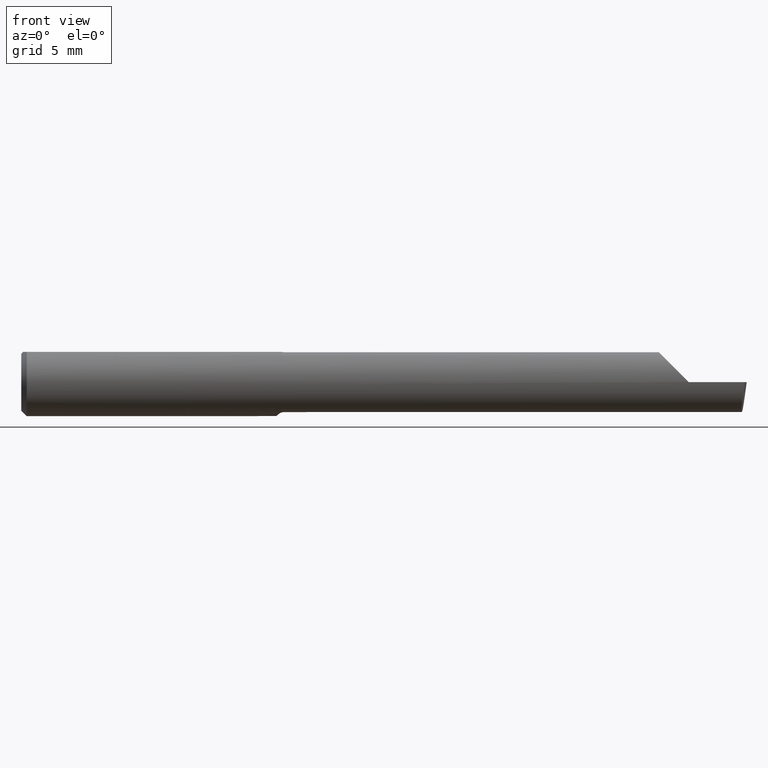
[diagram: clean part render]
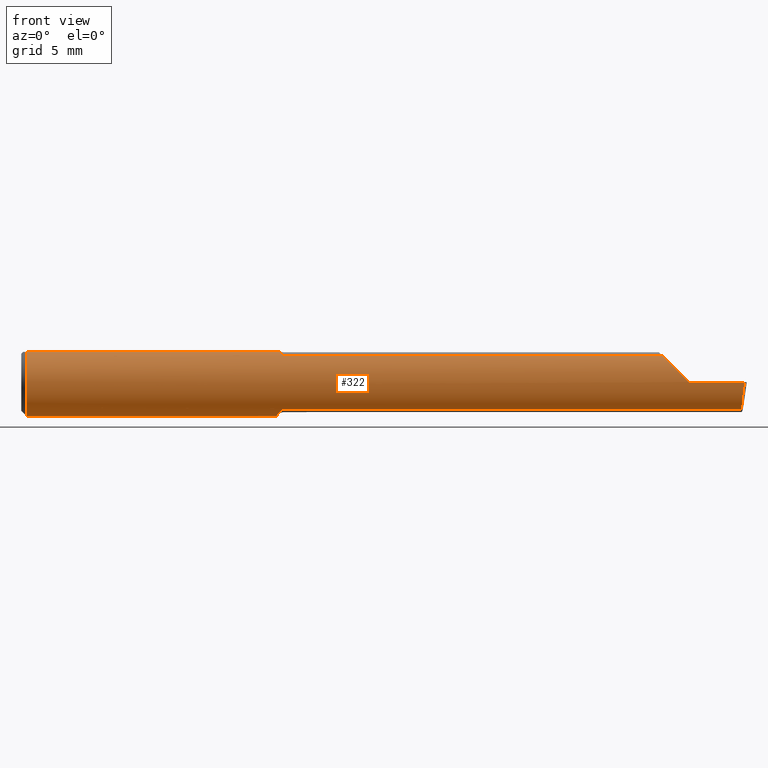
[diagram: same view with one face highlighted and labeled with its STEP entity id]
A machine part, front view. The second image highlights one B-rep face of the part: STEP entity #322.
In plain terms, the highlighted cylindrical surface (edge-blend (fillet) strip) has radius 2.3774 mm, axis along (-1, -0, -0).
Its self-contained STEP definition (entity closure, byte-faithful):
#6 = CARTESIAN_POINT ( 'NONE',  ( 0.7106015631409865474, -0.03939123913276627170, -0.08506160841583897125 ) ) ;
#7 = DIRECTION ( 'NONE',  ( -1.000000000000000000, -0.000000000000000000, -0.000000000000000000 ) ) ;
#9 = B_SPLINE_CURVE_WITH_KNOTS ( 'NONE', 3,
 ( #469, #97, #582, #379 ),
 .UNSPECIFIED., .F., .F.,
 ( 4, 4 ),
 ( 0.001281379682259375539, 0.001681479309652208218 ),
 .UNSPECIFIED. ) ;
#11 = VERTEX_POINT ( 'NONE', #101 ) ;
#14 = VECTOR ( 'NONE', #535, 39.37007874015748143 ) ;
#16 = ORIENTED_EDGE ( 'NONE', *, *, #245, .F. ) ;
#17 = DIRECTION ( 'NONE',  ( -1.000000000000000000, -0.000000000000000000, -0.000000000000000000 ) ) ;
#22 = VECTOR ( 'NONE', #270, 39.37007874015748143 ) ;
#27 = CARTESIAN_POINT ( 'NONE',  ( 1.840000000000000080, -0.09359807690332104524, 0.0005999999999995612792 ) ) ;
#28 = CARTESIAN_POINT ( 'NONE',  ( 0.01500000000000024925, 0.04209513035969833505, 0.08360000000000004927 ) ) ;
#34 = CARTESIAN_POINT ( 'NONE',  ( 1.990029385046014232, -0.09360000000000003040, -0.02942396326758906638 ) ) ;
#36 = VERTEX_POINT ( 'NONE', #454 ) ;
#40 = ORIENTED_EDGE ( 'NONE', *, *, #277, .T. ) ;
#41 = CARTESIAN_POINT ( 'NONE',  ( 0.7192658722290595774, -0.05486689380272752325, -0.07584023785067360579 ) ) ;
#51 = CARTESIAN_POINT ( 'NONE',  ( 2.000000000000000000, 0.04209513035969836975, 0.08360000000000000764 ) ) ;
#57 = VERTEX_POINT ( 'NONE', #603 ) ;
#60 = DIRECTION ( 'NONE',  ( 0.000000000000000000, 0.000000000000000000, 1.000000000000000000 ) ) ;
#88 = EDGE_CURVE ( 'NONE', #222, #490, #341, .T. ) ;
#89 = CARTESIAN_POINT ( 'NONE',  ( 1.784610455782698724, -0.08049145269555457727, 0.05598954421730131109 ) ) ;
#91 = CARTESIAN_POINT ( 'NONE',  ( 0.7001683542877240596, 0.03731812126116981071, -0.08648697983258404887 ) ) ;
#92 = AXIS2_PLACEMENT_3D ( 'NONE', #612, #211, #304 ) ;
#97 = CARTESIAN_POINT ( 'NONE',  ( 0.6999999999999999556, 0.05132964582701134842, 0.07844505570132466465 ) ) ;
#101 = CARTESIAN_POINT ( 'NONE',  ( 1.766692136939142621, -0.05743333333333168478, 0.07390786306085683766 ) ) ;
#104 = EDGE_CURVE ( 'NONE', #338, #11, #119, .T. ) ;
#109 = VERTEX_POINT ( 'NONE', #28 ) ;
#116 = VERTEX_POINT ( 'NONE', #217 ) ;
#119 = LINE ( 'NONE', #311, #22 ) ;
#125 = CARTESIAN_POINT ( 'NONE',  ( 0.7144594359606575296, -0.04855549187618778822, 0.08009376993471978290 ) ) ;
#130 = CARTESIAN_POINT ( 'NONE',  ( 1.985817582123950320, -0.05743333333333396767, -0.07390786306085539437 ) ) ;
#135 = EDGE_CURVE ( 'NONE', #116, #533, #401, .T. ) ;
#138 = CARTESIAN_POINT ( 'NONE',  ( 0.7064249347091184905, -0.02512912529236663653, -0.09074268482284265913 ) ) ;
#142 = DIRECTION ( 'NONE',  ( 0.000000000000000000, 0.000000000000000000, 1.000000000000000000 ) ) ;
#146 = DIRECTION ( 'NONE',  ( 1.000000000000000000, -0.000000000000000000, -0.000000000000000000 ) ) ;
#151 = EDGE_CURVE ( 'NONE', #205, #109, #316, .T. ) ;
#158 = CARTESIAN_POINT ( 'NONE',  ( 0.01500000000000024925, 0.000000000000000000, 0.000000000000000000 ) ) ;
#162 = AXIS2_PLACEMENT_3D ( 'NONE', #367, #323, #142 ) ;
#178 = CARTESIAN_POINT ( 'NONE',  ( 1.766692136939142621, -0.05743333333333168478, 0.07390786306085683766 ) ) ;
#181 = CARTESIAN_POINT ( 'NONE',  ( 0.6999999999999999556, 0.05554285714285593645, 0.07533890774631855913 ) ) ;
#187 = CARTESIAN_POINT ( 'NONE',  ( 1.840000000000000080, -0.09359807690332104524, 0.0005999999999995612792 ) ) ;
#192 = CARTESIAN_POINT ( 'NONE',  ( 0.7201695385975412922, -0.05567765305827225564, -0.07524373138753884249 ) ) ;
#194 = CYLINDRICAL_SURFACE ( 'NONE', #237, 0.09360000000000001652 ) ;
#195 = ORIENTED_EDGE ( 'NONE', *, *, #229, .T. ) ;
#198 = EDGE_CURVE ( 'NONE', #463, #533, #492, .T. ) ;
#200 = AXIS2_PLACEMENT_3D ( 'NONE', #555, #306, #405 ) ;
#204 = DIRECTION ( 'NONE',  ( 1.000000000000000000, 0.000000000000000000, 0.000000000000000000 ) ) ;
#205 = VERTEX_POINT ( 'NONE', #230 ) ;
#208 = AXIS2_PLACEMENT_3D ( 'NONE', #158, #146, #346 ) ;
#211 = DIRECTION ( 'NONE',  ( 1.000000000000000000, -4.268512490100411279E-18, 0.000000000000000000 ) ) ;
#217 = CARTESIAN_POINT ( 'NONE',  ( 1.840000000000000080, -0.09359999999999998876, -1.868634782302818344E-17 ) ) ;
#221 = CARTESIAN_POINT ( 'NONE',  ( 1.993644362309209273, -0.09359999999999998876, -1.868634782302818344E-17 ) ) ;
#222 = VERTEX_POINT ( 'NONE', #523 ) ;
#223 = CARTESIAN_POINT ( 'NONE',  ( 0.7173920313944248672, -0.05284074569802003907, 0.07727701817164513154 ) ) ;
#229 = EDGE_CURVE ( 'NONE', #481, #11, #489, .T. ) ;
#230 = CARTESIAN_POINT ( 'NONE',  ( 0.01500000000000024925, 0.000000000000000000, -0.09360000000000001652 ) ) ;
#232 = CARTESIAN_POINT ( 'NONE',  ( 0.7046089870107814512, -0.01465891424109005622, -0.09304066311739291051 ) ) ;
#237 = AXIS2_PLACEMENT_3D ( 'NONE', #434, #7, #60 ) ;
#238 = CARTESIAN_POINT ( 'NONE',  ( 0.7223471907399622305, -0.05697548597935443021, -0.07426583441000186858 ) ) ;
#245 = EDGE_CURVE ( 'NONE', #490, #579, #9, .T. ) ;
#248 = LINE ( 'NONE', #388, #14 ) ;
#253 = ORIENTED_EDGE ( 'NONE', *, *, #608, .F. ) ;
#258 = EDGE_CURVE ( 'NONE', #116, #481, #366, .T. ) ;
#270 = DIRECTION ( 'NONE',  ( 1.000000000000000000, -4.268512490100411279E-18, 0.000000000000000000 ) ) ;
#272 = CARTESIAN_POINT ( 'NONE',  ( 0.7249999999999998668, -0.05743333333333425911, 0.07390786306085517232 ) ) ;
#273 = ORIENTED_EDGE ( 'NONE', *, *, #135, .F. ) ;
#277 = EDGE_CURVE ( 'NONE', #109, #579, #474, .T. ) ;
#280 = CARTESIAN_POINT ( 'NONE',  ( 0.6999999999999999556, 0.05554285714285593645, -0.07533890774631855913 ) ) ;
#282 = CARTESIAN_POINT ( 'NONE',  ( 0.7168167096662344528, -0.05223004665612089592, -0.07770207897814226938 ) ) ;
#285 = B_SPLINE_CURVE_WITH_KNOTS ( 'NONE', 3,
 ( #383, #529, #238, #192, #41, #282, #473, #381, #6, #138, #232, #588, #580, #91, #584, #280 ),
 .UNSPECIFIED., .F., .F.,
 ( 4, 2, 2, 2, 2, 2, 2, 4 ),
 ( 1.968462504384461654E-07, 0.0001030101262769526308, 0.0002058234063034668345, 0.0004114499663564955131, 0.0008227030864625499429, 0.001645209326674658586, 0.002467715566886766795, 0.003290221807098875437 ),
 .UNSPECIFIED. ) ;
#293 = CARTESIAN_POINT ( 'NONE',  ( 0.7249999999999998668, -0.05743333333333425911, 0.07390786306085517232 ) ) ;
#294 = ORIENTED_EDGE ( 'NONE', *, *, #258, .T. ) ;
#304 = DIRECTION ( 'NONE',  ( 0.000000000000000000, 1.000000000000000000, 0.000000000000000000 ) ) ;
#306 = DIRECTION ( 'NONE',  ( 1.000000000000000000, -0.000000000000000000, -0.000000000000000000 ) ) ;
#311 = CARTESIAN_POINT ( 'NONE',  ( 1.287499999999999867, -0.05743333333333396074, 0.07390786306085539437 ) ) ;
#313 = CARTESIAN_POINT ( 'NONE',  ( 0.7212365485754339556, -0.05647099370358384107, 0.07465896525111948012 ) ) ;
#316 = CIRCLE ( 'NONE', #200, 0.09360000000000001652 ) ;
#317 = CARTESIAN_POINT ( 'NONE',  ( 1.987230551035694903, -0.08066690435778495205, -0.05585320183932528798 ) ) ;
#319 = EDGE_LOOP ( 'NONE', ( #330, #385, #273, #294, #195, #348, #344, #406, #373, #590, #40, #16, #427, #253 ) ) ;
#322 = ADVANCED_FACE ( 'NONE', ( #443 ), #194, .T. ) ;
#323 = DIRECTION ( 'NONE',  ( -1.000000000000000000, -0.000000000000000000, -0.000000000000000000 ) ) ;
#327 = CARTESIAN_POINT ( 'NONE',  ( 0.7001421765265185559, 0.04209513036078788711, 0.08360000000000000764 ) ) ;
#328 = EDGE_CURVE ( 'NONE', #463, #36, #248, .T. ) ;
#330 = ORIENTED_EDGE ( 'NONE', *, *, #328, .F. ) ;
#338 = VERTEX_POINT ( 'NONE', #293 ) ;
#341 = CIRCLE ( 'NONE', #92, 0.09360000000000001652 ) ;
#344 = ORIENTED_EDGE ( 'NONE', *, *, #477, .F. ) ;
#346 = DIRECTION ( 'NONE',  ( 0.000000000000000000, 0.000000000000000000, -1.000000000000000000 ) ) ;
#348 = ORIENTED_EDGE ( 'NONE', *, *, #104, .F. ) ;
#361 = CARTESIAN_POINT ( 'NONE',  ( 1.985817582123950320, -0.05743333333333396767, -0.07390786306085539437 ) ) ;
#364 = CARTESIAN_POINT ( 'NONE',  ( 1.993644362309209273, -0.09359999999999998876, -1.868634782302818344E-17 ) ) ;
#366 = CIRCLE ( 'NONE', #162, 0.09360000000000001652 ) ;
#367 = CARTESIAN_POINT ( 'NONE',  ( 1.840000000000000080, 0.000000000000000000, 0.000000000000000000 ) ) ;
#373 = ORIENTED_EDGE ( 'NONE', *, *, #387, .T. ) ;
#379 = CARTESIAN_POINT ( 'NONE',  ( 0.7001421765265185559, 0.04209513036078788711, 0.08360000000000000764 ) ) ;
#381 = CARTESIAN_POINT ( 'NONE',  ( 0.7122440371897786893, -0.04400341751547394431, -0.08275374857139917995 ) ) ;
#383 = CARTESIAN_POINT ( 'NONE',  ( 0.7249999999999998668, -0.05743333333333425217, -0.07390786306085517232 ) ) ;
#385 = ORIENTED_EDGE ( 'NONE', *, *, #198, .T. ) ;
#387 = EDGE_CURVE ( 'NONE', #556, #205, #402, .T. ) ;
#388 = CARTESIAN_POINT ( 'NONE',  ( 1.287499999999999867, -0.05743333333333396074, -0.07390786306085539437 ) ) ;
#389 = EDGE_CURVE ( 'NONE', #57, #556, #487, .T. ) ;
#401 = LINE ( 'NONE', #609, #403 ) ;
#402 = CIRCLE ( 'NONE', #208, 0.09360000000000001652 ) ;
#403 = VECTOR ( 'NONE', #446, 39.37007874015748143 ) ;
#405 = DIRECTION ( 'NONE',  ( 0.000000000000000000, 0.000000000000000000, -1.000000000000000000 ) ) ;
#406 = ORIENTED_EDGE ( 'NONE', *, *, #389, .T. ) ;
#417 = CARTESIAN_POINT ( 'NONE',  ( 0.7230022073292465823, -0.05743333333450140882, 0.07390786305994839767 ) ) ;
#427 = ORIENTED_EDGE ( 'NONE', *, *, #88, .F. ) ;
#434 = CARTESIAN_POINT ( 'NONE',  ( 2.000000000000000000, 0.000000000000000000, 0.000000000000000000 ) ) ;
#443 = FACE_OUTER_BOUND ( 'NONE', #319, .T. ) ;
#446 = DIRECTION ( 'NONE',  ( 1.000000000000000000, -0.000000000000000000, -0.000000000000000000 ) ) ;
#451 = CARTESIAN_POINT ( 'NONE',  ( 0.01499999999997154825, -0.04209513035984145668, 0.08360000000000000764 ) ) ;
#453 = CARTESIAN_POINT ( 'NONE',  ( 0.7185001946110852744, -0.05420457752416667913, 0.07632036423959645544 ) ) ;
#454 = CARTESIAN_POINT ( 'NONE',  ( 0.7249999999999998668, -0.05743333333333425217, -0.07390786306085517232 ) ) ;
#462 = CARTESIAN_POINT ( 'NONE',  ( 1.810798836011072499, -0.09341088610867002984, 0.02980116398892690074 ) ) ;
#463 = VERTEX_POINT ( 'NONE', #361 ) ;
#469 = CARTESIAN_POINT ( 'NONE',  ( 0.6999999999999999556, 0.05554285714285593645, 0.07533890774631855913 ) ) ;
#473 = CARTESIAN_POINT ( 'NONE',  ( 0.7155699161518951357, -0.05024158040198412056, -0.07901028105649182676 ) ) ;
#474 = LINE ( 'NONE', #51, #623 ) ;
#477 = EDGE_CURVE ( 'NONE', #57, #338, #548, .T. ) ;
#481 = VERTEX_POINT ( 'NONE', #27 ) ;
#487 = LINE ( 'NONE', #599, #500 ) ;
#489 =( BOUNDED_CURVE ( )  B_SPLINE_CURVE ( 3, ( #187, #462, #89, #178 ),
 .UNSPECIFIED., .F., .T. ) 
 B_SPLINE_CURVE_WITH_KNOTS ( ( 4, 4 ),
 ( 4.718799280696806875, 5.622568524807419088 ),
 .UNSPECIFIED. ) 
 CURVE ( )  GEOMETRIC_REPRESENTATION_ITEM ( )  RATIONAL_B_SPLINE_CURVE ( ( 1.000000000000000000, 0.9330838387302586856, 0.9330838387302586856, 1.000000000000000000 ) ) 
 REPRESENTATION_ITEM ( '' )  );
#490 = VERTEX_POINT ( 'NONE', #181 ) ;
#492 =( BOUNDED_CURVE ( )  B_SPLINE_CURVE ( 3, ( #130, #317, #34, #221 ),
 .UNSPECIFIED., .F., .T. ) 
 B_SPLINE_CURVE_WITH_KNOTS ( ( 4, 4 ),
 ( 0.3856751006538640669, 1.295854645076564893 ),
 .UNSPECIFIED. ) 
 CURVE ( )  GEOMETRIC_REPRESENTATION_ITEM ( )  RATIONAL_B_SPLINE_CURVE ( ( 1.000000000000000000, 0.9321477153702222296, 0.9321477153702222296, 1.000000000000000000 ) ) 
 REPRESENTATION_ITEM ( '' )  );
#500 = VECTOR ( 'NONE', #17, 39.37007874015748143 ) ;
#523 = CARTESIAN_POINT ( 'NONE',  ( 0.6999999999999999556, 0.05554285714285593645, -0.07533890774631855913 ) ) ;
#529 = CARTESIAN_POINT ( 'NONE',  ( 0.7236293193507192800, -0.05743333333333433544, -0.07390786306085513069 ) ) ;
#533 = VERTEX_POINT ( 'NONE', #364 ) ;
#535 = DIRECTION ( 'NONE',  ( -1.000000000000000000, 4.268512490100411279E-18, -0.000000000000000000 ) ) ;
#548 = B_SPLINE_CURVE_WITH_KNOTS ( 'NONE', 3,
 ( #564, #611, #125, #223, #453, #313, #417, #272 ),
 .UNSPECIFIED., .F., .F.,
 ( 4, 2, 2, 4 ),
 ( 4.683264684557551411E-07, 0.0002986912473784186024, 0.0004478027078334029677, 0.0005969141682883872787 ),
 .UNSPECIFIED. ) ;
#555 = CARTESIAN_POINT ( 'NONE',  ( 0.01500000000000024925, 0.000000000000000000, 0.000000000000000000 ) ) ;
#556 = VERTEX_POINT ( 'NONE', #451 ) ;
#564 = CARTESIAN_POINT ( 'NONE',  ( 0.7117174437742903592, -0.04209513035984613349, 0.08360000000000000764 ) ) ;
#579 = VERTEX_POINT ( 'NONE', #327 ) ;
#580 = CARTESIAN_POINT ( 'NONE',  ( 0.7011445761437103963, 0.01709494092009270980, -0.09263046394120945382 ) ) ;
#582 = CARTESIAN_POINT ( 'NONE',  ( 0.7000400275599603095, 0.04685176294831511906, 0.08120489152038634639 ) ) ;
#584 = CARTESIAN_POINT ( 'NONE',  ( 0.6999999999999999556, 0.04702664240545674501, -0.08161740198929305634 ) ) ;
#588 = CARTESIAN_POINT ( 'NONE',  ( 0.7019609048845474319, 0.006343059769486621841, -0.09397454098218595286 ) ) ;
#590 = ORIENTED_EDGE ( 'NONE', *, *, #151, .T. ) ;
#599 = CARTESIAN_POINT ( 'NONE',  ( 2.000000000000000000, -0.04209513035969836975, 0.08360000000000000764 ) ) ;
#603 = CARTESIAN_POINT ( 'NONE',  ( 0.7117174437742903592, -0.04209513035984613349, 0.08360000000000000764 ) ) ;
#608 = EDGE_CURVE ( 'NONE', #36, #222, #285, .T. ) ;
#609 = CARTESIAN_POINT ( 'NONE',  ( 1.840000000000000080, -0.09359999999999998876, -1.868634782302818344E-17 ) ) ;
#611 = CARTESIAN_POINT ( 'NONE',  ( 0.7130067246231645006, -0.04541486399302763904, 0.08192841363590092074 ) ) ;
#612 = CARTESIAN_POINT ( 'NONE',  ( 0.6999999999999999556, 0.000000000000000000, 0.000000000000000000 ) ) ;
#623 = VECTOR ( 'NONE', #204, 39.37007874015748143 ) ;